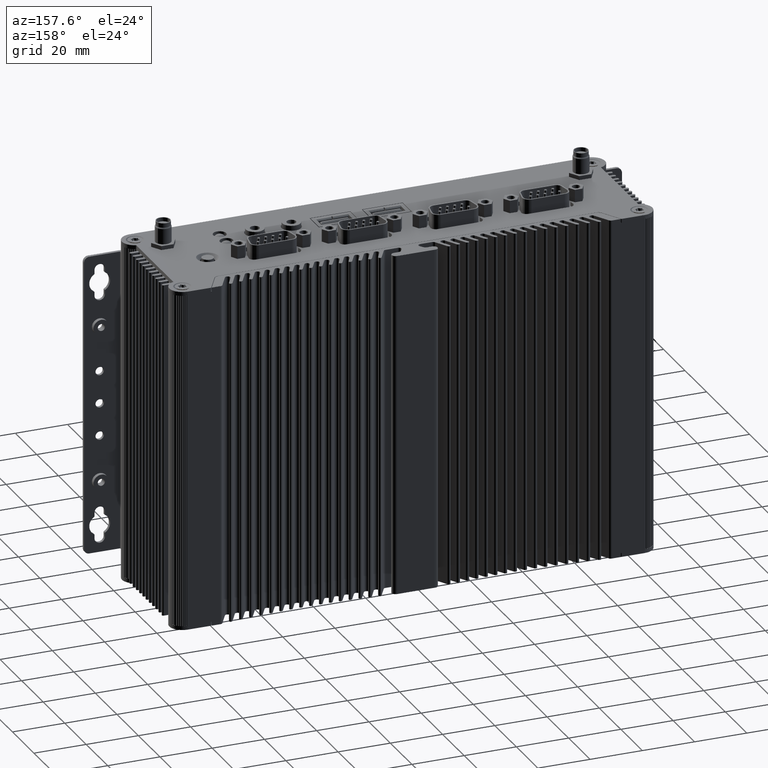
[diagram: clean part render]
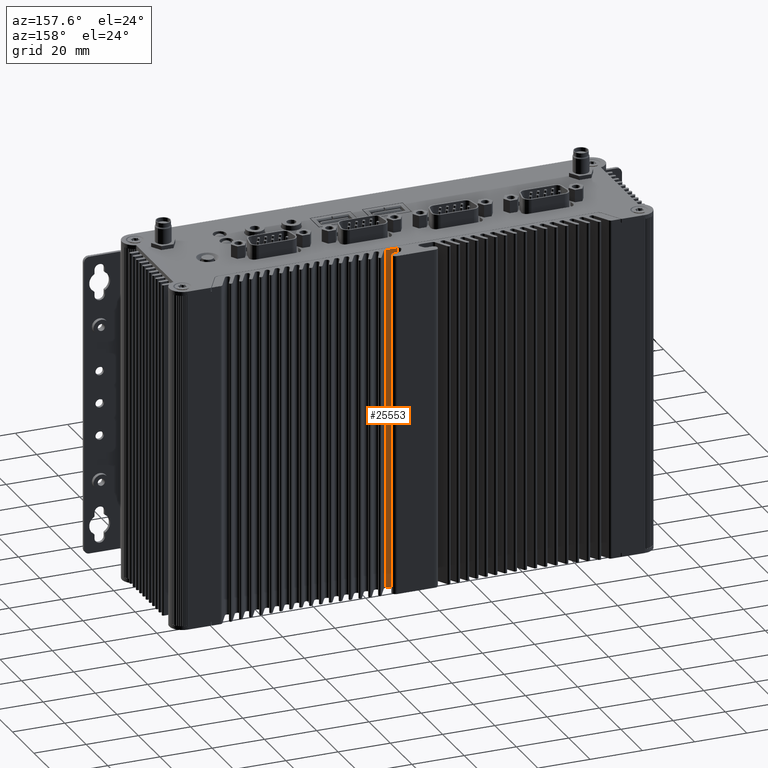
[diagram: same view with one face highlighted and labeled with its STEP entity id]
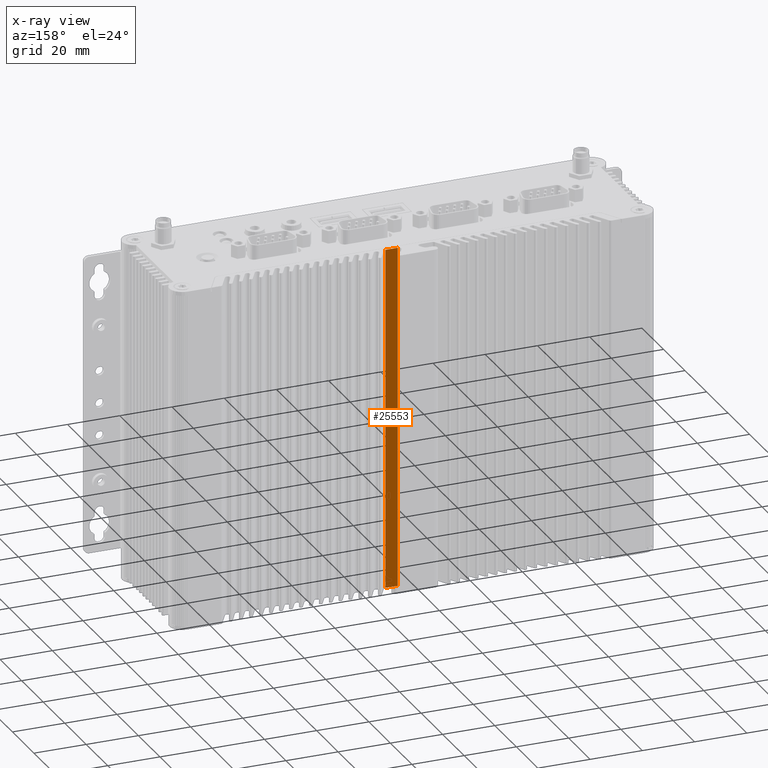
[diagram: x-ray of the same camera — body ghosted, the highlighted face saturated]
A machine part, auxiliary view. The second image highlights one B-rep face of the part: STEP entity #25553.
The next image is the same camera in x-ray: the body ghosted, the highlighted face saturated — about 0% of this face is hidden behind the body in this view.
In plain terms, the highlighted planar face has unit normal (0, 1, -0).
Its self-contained STEP definition (entity closure, byte-faithful):
#558 = EDGE_CURVE ( 'NONE', #19741, #19585, #38866, .T. ) ;
#577 = EDGE_CURVE ( 'NONE', #19585, #20828, #38956, .T. ) ;
#5963 = EDGE_CURVE ( 'NONE', #19741, #20760, #78813, .T. ) ;
#6007 = EDGE_CURVE ( 'NONE', #20760, #20828, #79396, .T. ) ;
#14832 = EDGE_LOOP ( 'NONE', ( #51960, #51950, #51966, #51954 ) ) ;
#19585 = VERTEX_POINT ( 'NONE', #40848 ) ;
#19741 = VERTEX_POINT ( 'NONE', #40932 ) ;
#20760 = VERTEX_POINT ( 'NONE', #41355 ) ;
#20828 = VERTEX_POINT ( 'NONE', #41423 ) ;
#25553 = ADVANCED_FACE ( 'NONE', ( #71774 ), #71775, .T. ) ;
#29039 = VECTOR ( 'NONE', #38871, 1000.000000000000000 ) ;
#29057 = VECTOR ( 'NONE', #38961, 1000.000000000000000 ) ;
#34833 = AXIS2_PLACEMENT_3D ( 'NONE', #71771, #71778, #71779 ) ;
#38866 = LINE ( 'NONE', #38869, #29039 ) ;
#38869 = CARTESIAN_POINT ( 'NONE',  ( 37.32275246960650600, 11.88363083546860300, -130.9999999999813600 ) ) ;
#38871 = DIRECTION ( 'NONE',  ( 0.0000000000000000000, 0.0000000000000000000, 1.000000000000000000 ) ) ;
#38956 = LINE ( 'NONE', #38959, #29057 ) ;
#38959 = CARTESIAN_POINT ( 'NONE',  ( 28.38382020913725200, 11.88363083546860300, 1.863786902589481500E-011 ) ) ;
#38961 = DIRECTION ( 'NONE',  ( -1.000000000000000000, 0.0000000000000000000, 0.0000000000000000000 ) ) ;
#40848 = CARTESIAN_POINT ( 'NONE',  ( 37.32275246960650600, 11.88363083546860300, 1.863786902589481500E-011 ) ) ;
#40932 = CARTESIAN_POINT ( 'NONE',  ( 37.32275246960650600, 11.88363083546860300, -130.9999999999813600 ) ) ;
#41355 = CARTESIAN_POINT ( 'NONE',  ( 32.61587052920647500, 11.88363083546860300, -130.9999999999813600 ) ) ;
#41423 = CARTESIAN_POINT ( 'NONE',  ( 32.61587052920647500, 11.88363083546860300, 1.863786902589481500E-011 ) ) ;
#51950 = ORIENTED_EDGE ( 'NONE', *, *, #558, .F. ) ;
#51954 = ORIENTED_EDGE ( 'NONE', *, *, #6007, .T. ) ;
#51960 = ORIENTED_EDGE ( 'NONE', *, *, #577, .F. ) ;
#51966 = ORIENTED_EDGE ( 'NONE', *, *, #5963, .T. ) ;
#71771 = CARTESIAN_POINT ( 'NONE',  ( 28.38382020913725200, 11.88363083546860300, -130.9999999999813600 ) ) ;
#71774 = FACE_OUTER_BOUND ( 'NONE', #14832, .T. ) ;
#71775 = PLANE ( 'NONE',  #34833 ) ;
#71778 = DIRECTION ( 'NONE',  ( 0.0000000000000000000, 1.000000000000000000, -0.0000000000000000000 ) ) ;
#71779 = DIRECTION ( 'NONE',  ( 0.0000000000000000000, 0.0000000000000000000, 1.000000000000000000 ) ) ;
#78799 = CARTESIAN_POINT ( 'NONE',  ( 28.38382020913725200, 11.88363083546860300, -130.9999999999813600 ) ) ;
#78813 = LINE ( 'NONE', #78799, #88428 ) ;
#78845 = DIRECTION ( 'NONE',  ( -1.000000000000000000, 0.0000000000000000000, 0.0000000000000000000 ) ) ;
#79383 = CARTESIAN_POINT ( 'NONE',  ( 32.61587052920647500, 11.88363083546860300, -130.9999999999813600 ) ) ;
#79396 = LINE ( 'NONE', #79383, #88533 ) ;
#79415 = DIRECTION ( 'NONE',  ( 0.0000000000000000000, 0.0000000000000000000, 1.000000000000000000 ) ) ;
#88428 = VECTOR ( 'NONE', #78845, 1000.000000000000000 ) ;
#88533 = VECTOR ( 'NONE', #79415, 1000.000000000000000 ) ;